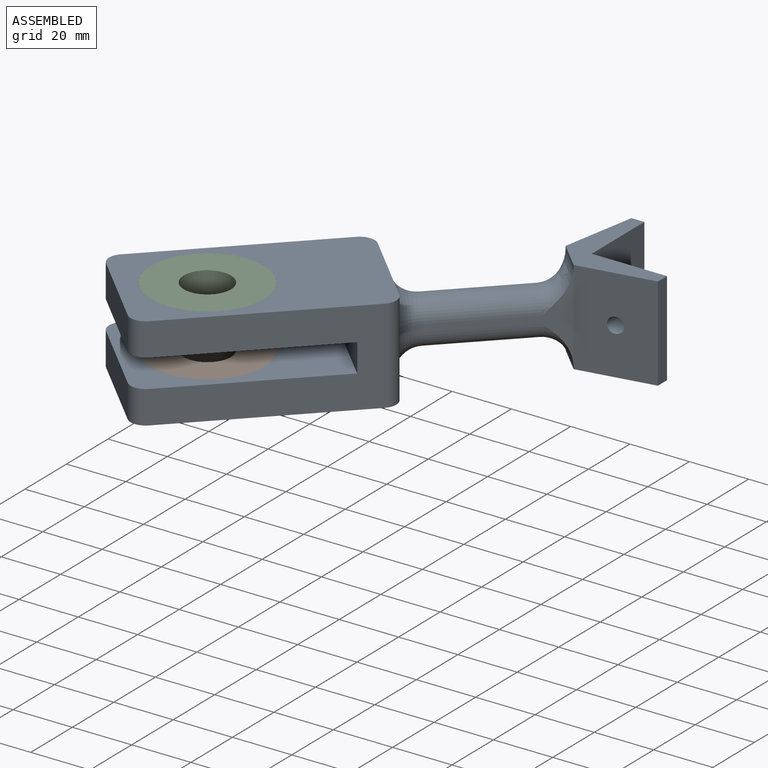
[diagram: assembled view]
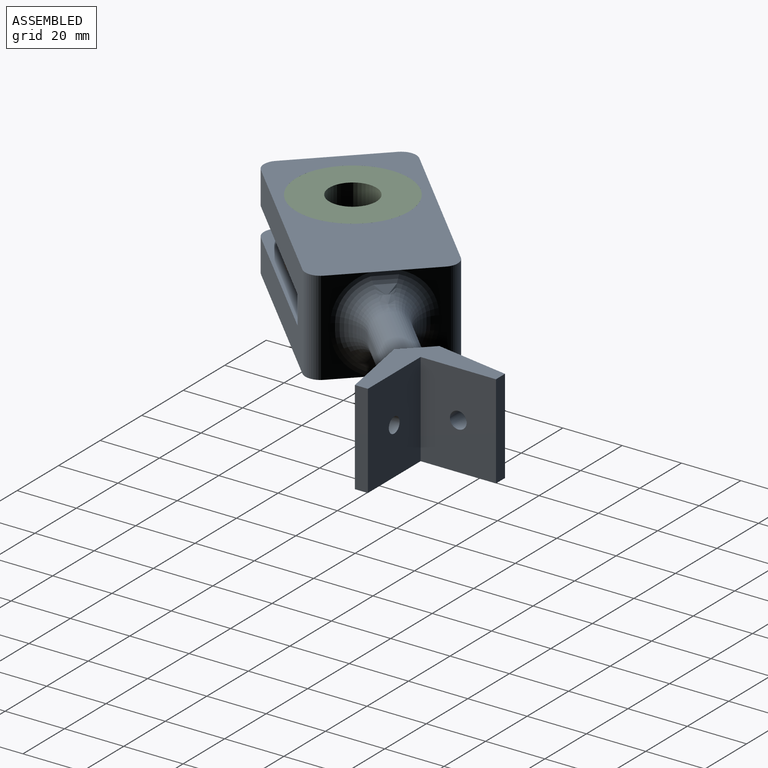
[diagram: assembled view, second angle]
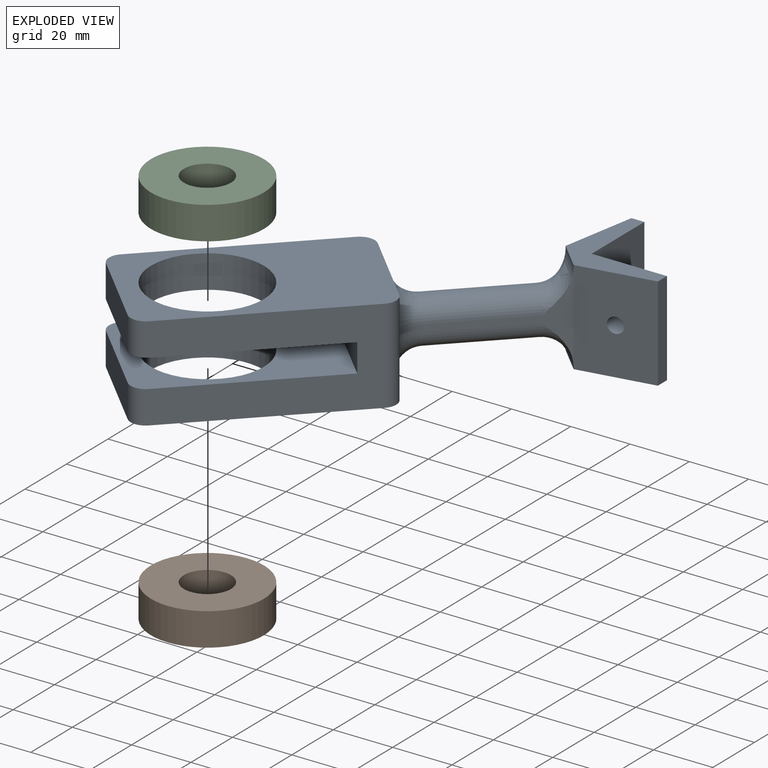
[diagram: exploded view]
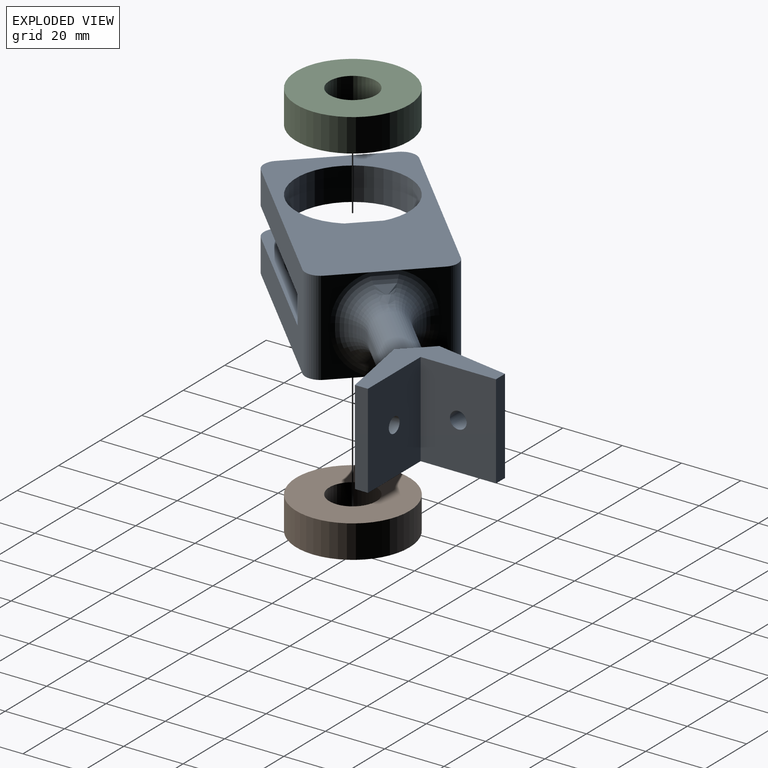
[diagram: exploded view, second angle]
ASSEMBLY  parts=3 mates=4
PART A: 51 faces, bbox 133.4x133.4x47.5 mm
  f0: plane 1.41x1.41mm, normal (-0.71,-0.71,0), area 0.7mm2, adj f11,f20,f44
  f1: plane 1.41x1.41mm, normal (-0.71,-0.71,0), area 0.7mm2, adj f5,f16,f41
  f2: plane 31.75x9.05mm, normal (0.71,0.71,0), area 144.5mm2, adj f6,f19,f31,f33,f35,f50
  f3: plane 30.25x29.64mm, normal (0.71,-0.71,0), area 188.6mm2, adj f11,f29,f30,f33,f39,f44
  f4: plane 30.25x29.64mm, normal (-0.71,0.71,0), area 188.6mm2, adj f16,f29,f30,f36,f41,f42
  f5: plane 34.32x34.32mm, normal (0,0,1), area 374.5mm2, adj f1,f11,f12,f13,f14,f15,f16,f28
  f6: plane 81.17x81.17mm, normal (0,0,-1), area 2224.8mm2, adj f2,f8,f9,f17,f18,f21,f37,f45
  f7: plane 24.25x24.25mm, normal (-0.71,-0.71,0), area 381mm2, adj f19,f25,f48,f49
  f8: plane 46.7x46.7mm, normal (-0.71,0.71,0), area 1540.3mm2, adj f6,f19,f24,f25,f26,f45,f47,f48
  f9: plane 46.7x46.7mm, normal (0.71,-0.71,0), area 1540.3mm2, adj f6,f19,f24,f25,f26,f46,f49,f50
  f10: cylinder r=19.05mm len=38.1mm, axis (0,0,1), area 1330.1mm2, adj f19,f25
  f11: plane 31.94x25.47mm, normal (0.17,-0.98,0), area 793.5mm2, adj f0,f3,f5,f12,f20,f22,f28
  f12: plane 31.75x4.36mm, normal (1,0,0), area 138.6mm2, adj f5,f11,f13,f20
  f13: plane 31.75x25.4mm, normal (0,1,0), area 785.3mm2, adj f5,f12,f14,f20,f22
  f14: plane 31.75x25.4mm, normal (1,0,0), area 781.6mm2, adj f5,f13,f15,f20,f23
  f15: plane 31.75x4.36mm, normal (0,1,0), area 138.6mm2, adj f5,f14,f16,f20
  f16: plane 31.96x25.49mm, normal (-0.98,0.17,0), area 789.8mm2, adj f1,f4,f5,f15,f20,f23,f27
  f17: plane 31.75x9.05mm, normal (0.71,0.71,0), area 144.5mm2, adj f6,f19,f34,f36,f38,f47
  f18: plane 24.25x24.25mm, normal (-0.71,-0.71,0), area 381mm2, adj f6,f24,f45,f46
  f19: plane 81.17x81.17mm, normal (0,0,1), area 2224.8mm2, adj f2,f7,f8,f9,f10,f17,f32,f47
  f20: plane 34.32x34.32mm, normal (0,0,-1), area 374.5mm2, adj f0,f11,f12,f13,f14,f15,f16,f27
  f21: cylinder r=19.05mm len=38.1mm, axis (0,0,1), area 1330.1mm2, adj f6,f24
  f22: cylinder r=2.6mm len=7.09mm, axis (0,1,0), area 108.6mm2, adj f11,f13
  f23: cylinder r=2.82mm len=7.12mm, axis (1,0,0), area 117.6mm2, adj f14,f16
  f24: plane 74.23x74.23mm, normal (0,0,1), area 1671.4mm2, adj f8,f9,f18,f21,f26,f45,f46
  f25: plane 74.23x74.23mm, normal (0,0,-1), area 1671.4mm2, adj f7,f8,f9,f10,f26,f48,f49
  f26: plane 31.43x31.43mm, normal (-0.71,-0.71,0), area 423.4mm2, adj f8,f9,f24,f25
  f27: plane 1.41x1.41mm, normal (-0.71,-0.71,0), area 0.7mm2, adj f16,f20,f42
  f28: plane 1.41x1.41mm, normal (-0.71,-0.71,0), area 0.7mm2, adj f5,f11,f39
  f29: cylinder r=6.35mm len=32.33mm, axis (-0.71,-0.71,0), area 658.7mm2, adj f3,f4,f35,f37,f38,f42,f43,f44
  f30: cylinder r=6.35mm len=32.33mm, axis (0.71,0.71,0), area 658.7mm2, adj f3,f4,f31,f32,f34,f39,f40,f41
  f31: torus R=15.24mm, axis (0.71,0.71,0), area 171.4mm2, adj f2,f30,f32,f33
  f32: bspline ~11.79x11.38mm, area 73.8mm2, adj f19,f30,f31,f34
  f33: cylinder r=8.89mm len=12.57mm, axis (0,0,-1), area 35.5mm2, adj f2,f3,f31,f35
  f34: torus R=15.24mm, axis (0.71,0.71,0), area 171.4mm2, adj f17,f30,f32,f36
  f35: torus R=15.24mm, axis (0.71,0.71,0), area 171.4mm2, adj f2,f29,f33,f37
  f36: cylinder r=8.89mm len=12.57mm, axis (0,0,1), area 35.5mm2, adj f4,f17,f34,f38
  f37: bspline ~11.79x11.38mm, area 73.8mm2, adj f6,f29,f35,f38
  f38: torus R=15.24mm, axis (0.71,0.71,0), area 171.4mm2, adj f17,f29,f36,f37
  f39: torus R=15.24mm, axis (-0.71,-0.71,0), area 65mm2, adj f3,f28,f30,f40
  f40: bspline ~11.79x11.38mm, area 73.8mm2, adj f5,f30,f39,f41
  f41: torus R=15.24mm, axis (-0.71,-0.71,0), area 65mm2, adj f1,f4,f30,f40
  f42: torus R=15.24mm, axis (0.71,0.71,0), area 65mm2, adj f4,f27,f29,f43
  f43: bspline ~11.79x11.38mm, area 73.8mm2, adj f20,f29,f42,f44
  f44: torus R=15.24mm, axis (0.71,0.71,0), area 65mm2, adj f0,f3,f29,f43
  f45: cylinder r=5.08mm len=11.11mm, axis (0,0,-1), area 88.7mm2, adj f6,f8,f18,f24
  f46: cylinder r=5.08mm len=11.11mm, axis (0,0,1), area 88.7mm2, adj f6,f9,f18,f24
  f47: cylinder r=5.08mm len=31.75mm, axis (0,0,1), area 253.4mm2, adj f6,f8,f17,f19
  f48: cylinder r=5.08mm len=11.11mm, axis (0,0,-1), area 88.7mm2, adj f7,f8,f19,f25
  f49: cylinder r=5.08mm len=11.11mm, axis (0,0,1), area 88.7mm2, adj f7,f9,f19,f25
  f50: cylinder r=5.08mm len=31.75mm, axis (0,0,-1), area 253.4mm2, adj f2,f6,f9,f19
PART B: 4 faces, bbox 38.1x38.1x11.1 mm
  f0: cylinder r=7.94mm len=15.88mm, axis (0,0,-1), area 554.2mm2, adj f2,f3
  f1: cylinder r=19.05mm len=38.1mm, axis (0,0,-1), area 1330.1mm2, adj f2,f3
  f2: plane 38.1x38.1mm, normal (0,0,1), area 942.2mm2, adj f0,f1
  f3: plane 38.1x38.1mm, normal (0,0,-1), area 942.2mm2, adj f0,f1
PART C: same geometry as B
PLACE A t=(73.34,134.58,61.54)mm
PLACE B t=(73.34,134.58,51.22)mm
PLACE C rot(axis=(0,0,1),0deg) t=(73.34,134.58,71.86)mm
MATE parallel C.f1 <-> A.f5  axis (0,0,1) through (73.34,134.58,77.42)mm
MATE cylindrical A.f10 <-> B.f1  axis (0,0,-1) through (73.34,134.58,45.67)mm
MATE parallel B.f1 <-> A.f20  axis (0,0,-1) through (73.34,134.58,45.67)mm
MATE cylindrical A.f10 <-> C.f1  axis (0,0,1) through (73.34,134.58,77.42)mm
